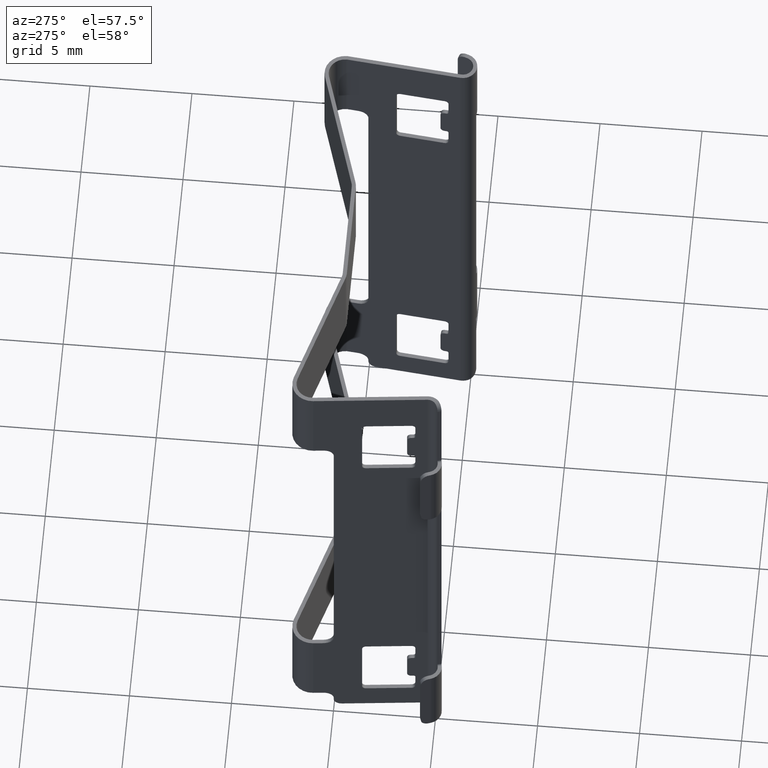
[diagram: clean part render]
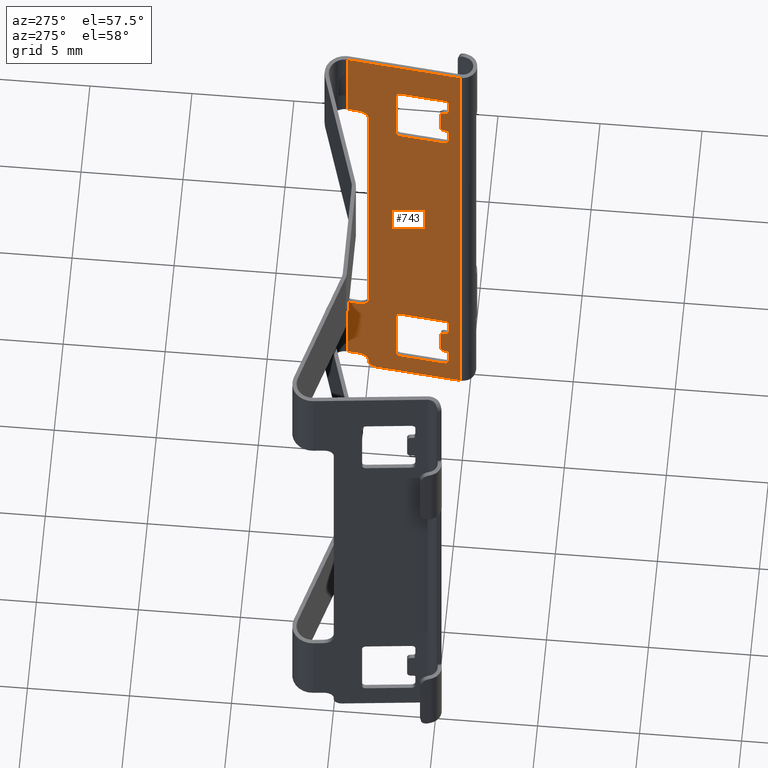
[diagram: same view with one face highlighted and labeled with its STEP entity id]
A machine part, auxiliary view. The second image highlights one B-rep face of the part: STEP entity #743.
In plain terms, the highlighted planar face has unit normal (-0.9948, 0.1017, 0).
Its self-contained STEP definition (entity closure, byte-faithful):
#2 = ORIENTED_EDGE ( 'NONE', *, *, #985, .T. ) ;
#4 = VERTEX_POINT ( 'NONE', #8831 ) ;
#15 = CARTESIAN_POINT ( 'NONE',  ( 9.820850543788150588, 1.018624868332397959, -27.50000000000000000 ) ) ;
#88 = CIRCLE ( 'NONE', #3876, 0.2000000000000002331 ) ;
#201 = DIRECTION ( 'NONE',  ( -0.9948131797247722341, 0.1017189139043866292, 0.0000000000000000000 ) ) ;
#209 = ORIENTED_EDGE ( 'NONE', *, *, #1680, .F. ) ;
#244 = CARTESIAN_POINT ( 'NONE',  ( 9.253630773689479838, -4.528796760894030271, -27.50000000000000000 ) ) ;
#251 = CARTESIAN_POINT ( 'NONE',  ( 9.768973897696909603, 0.5112701466727650468, -22.00000000000000000 ) ) ;
#261 = CARTESIAN_POINT ( 'NONE',  ( 9.333156098323097893, -3.751037364624969950, -3.649999999999999911 ) ) ;
#309 = ORIENTED_EDGE ( 'NONE', *, *, #9173, .T. ) ;
#341 = ORIENTED_EDGE ( 'NONE', *, *, #369, .F. ) ;
#361 = CARTESIAN_POINT ( 'NONE',  ( 9.333156098323097893, -3.751037364624969950, -22.55000000000000071 ) ) ;
#369 = EDGE_CURVE ( 'NONE', #6671, #1472, #4783, .T. ) ;
#395 = CARTESIAN_POINT ( 'NONE',  ( 9.312812315542219110, -3.950000000569925618, -5.150000000000000355 ) ) ;
#414 = DIRECTION ( 'NONE',  ( 0.9948131797247722341, -0.1017189139043866292, 0.0000000000000000000 ) ) ;
#441 = CIRCLE ( 'NONE', #1641, 0.2000000000000002331 ) ;
#459 = ORIENTED_EDGE ( 'NONE', *, *, #3282, .T. ) ;
#476 = DIRECTION ( 'NONE',  ( -0.1017189139043867124, -0.9948131797247723451, 0.0000000000000000000 ) ) ;
#555 = DIRECTION ( 'NONE',  ( 0.9948131797247722341, -0.1017189139043868235, 0.0000000000000000000 ) ) ;
#578 = CARTESIAN_POINT ( 'NONE',  ( 9.253630773689479838, -4.528796760894030271, -27.50000000000000000 ) ) ;
#597 = CIRCLE ( 'NONE', #987, 0.4999999999999998335 ) ;
#616 = LINE ( 'NONE', #6604, #3114 ) ;
#654 = LINE ( 'NONE', #8546, #4590 ) ;
#657 = DIRECTION ( 'NONE',  ( 0.9948131797247722341, -0.1017189139043868235, 0.0000000000000000000 ) ) ;
#722 = VERTEX_POINT ( 'NONE', #2347 ) ;
#724 = CARTESIAN_POINT ( 'NONE',  ( 9.253630773689479838, -4.528796760894030271, 0.0000000000000000000 ) ) ;
#743 = ADVANCED_FACE ( 'NONE', ( #4249, #1091, #7606 ), #9849, .T. ) ;
#765 = VECTOR ( 'NONE', #1357, 1000.000000000000114 ) ;
#766 = VECTOR ( 'NONE', #6572, 1000.000000000000114 ) ;
#876 = VECTOR ( 'NONE', #4039, 1000.000000000000114 ) ;
#882 = EDGE_CURVE ( 'NONE', #6743, #8726, #4061, .T. ) ;
#957 = DIRECTION ( 'NONE',  ( 0.0000000000000000000, 0.0000000000000000000, 1.000000000000000000 ) ) ;
#960 = CARTESIAN_POINT ( 'NONE',  ( 9.312812315542219110, -3.950000000569925618, -25.94999999999999929 ) ) ;
#962 = CIRCLE ( 'NONE', #10308, 0.4000000000000000222 ) ;
#985 = EDGE_CURVE ( 'NONE', #6490, #3969, #654, .T. ) ;
#987 = AXIS2_PLACEMENT_3D ( 'NONE', #8980, #3080, #3724 ) ;
#1003 = EDGE_LOOP ( 'NONE', ( #4217, #1516, #10907, #1556, #10713, #2727, #5761, #10853, #2973, #4162, #1889, #341, #4460, #1722 ) ) ;
#1024 = CARTESIAN_POINT ( 'NONE',  ( 9.353499881103978453, -3.552074728680014726, -23.44999999999999929 ) ) ;
#1038 = CARTESIAN_POINT ( 'NONE',  ( 9.718114440744720639, 0.01386355681037777961, -21.50000000000000000 ) ) ;
#1040 = CIRCLE ( 'NONE', #8229, 0.2000000000000000111 ) ;
#1091 = FACE_BOUND ( 'NONE', #8406, .T. ) ;
#1093 = CARTESIAN_POINT ( 'NONE',  ( 9.253630773689479838, -4.528796760894030271, 0.0000000000000000000 ) ) ;
#1100 = VECTOR ( 'NONE', #8612, 1000.000000000000000 ) ;
#1165 = VERTEX_POINT ( 'NONE', #6140 ) ;
#1167 = EDGE_CURVE ( 'NONE', #3404, #7690, #7004, .T. ) ;
#1222 = VECTOR ( 'NONE', #5324, 1000.000000000000000 ) ;
#1249 = VECTOR ( 'NONE', #3101, 1000.000000000000000 ) ;
#1321 = DIRECTION ( 'NONE',  ( 0.0000000000000000000, 0.0000000000000000000, 1.000000000000000000 ) ) ;
#1351 = CARTESIAN_POINT ( 'NONE',  ( 9.577281491693630855, -1.363485733285517920, -22.34999999999999787 ) ) ;
#1357 = DIRECTION ( 'NONE',  ( 0.1017189139043868096, 0.9948131797247721231, 0.0000000000000000000 ) ) ;
#1379 = ORIENTED_EDGE ( 'NONE', *, *, #5777, .F. ) ;
#1387 = EDGE_CURVE ( 'NONE', #6454, #6076, #88, .T. ) ;
#1402 = LINE ( 'NONE', #8231, #1662 ) ;
#1464 = CARTESIAN_POINT ( 'NONE',  ( 9.556937708912750296, -1.562448369230469813, -5.950000000000000178 ) ) ;
#1472 = VERTEX_POINT ( 'NONE', #2871 ) ;
#1510 = CARTESIAN_POINT ( 'NONE',  ( 9.312812315542219110, -3.950000000569925618, -23.34999999999999787 ) ) ;
#1516 = ORIENTED_EDGE ( 'NONE', *, *, #9038, .T. ) ;
#1542 = ORIENTED_EDGE ( 'NONE', *, *, #2044, .F. ) ;
#1551 = CARTESIAN_POINT ( 'NONE',  ( 9.333156098323097893, -3.751037364624969950, -5.950000000000000178 ) ) ;
#1556 = ORIENTED_EDGE ( 'NONE', *, *, #2644, .T. ) ;
#1602 = DIRECTION ( 'NONE',  ( -0.1017189139043867124, -0.9948131797247723451, 0.0000000000000000000 ) ) ;
#1634 = VECTOR ( 'NONE', #9759, 1000.000000000000000 ) ;
#1637 = CIRCLE ( 'NONE', #3511, 0.09999999999999990841 ) ;
#1638 = ORIENTED_EDGE ( 'NONE', *, *, #11016, .T. ) ;
#1639 = CARTESIAN_POINT ( 'NONE',  ( 9.322984206932659390, -3.850518682597450226, -23.34999999999999787 ) ) ;
#1641 = AXIS2_PLACEMENT_3D ( 'NONE', #5579, #414, #3870 ) ;
#1654 = DIRECTION ( 'NONE',  ( -0.1017189139043868373, -0.9948131797247723451, 0.0000000000000000000 ) ) ;
#1662 = VECTOR ( 'NONE', #4813, 1000.000000000000000 ) ;
#1680 = EDGE_CURVE ( 'NONE', #10053, #7690, #616, .T. ) ;
#1714 = AXIS2_PLACEMENT_3D ( 'NONE', #1464, #555, #3892 ) ;
#1722 = ORIENTED_EDGE ( 'NONE', *, *, #8065, .T. ) ;
#1783 = LINE ( 'NONE', #7409, #1249 ) ;
#1800 = EDGE_CURVE ( 'NONE', #3969, #3757, #7512, .T. ) ;
#1857 = ORIENTED_EDGE ( 'NONE', *, *, #3120, .T. ) ;
#1889 = ORIENTED_EDGE ( 'NONE', *, *, #9003, .T. ) ;
#1890 = VECTOR ( 'NONE', #9460, 1000.000000000000114 ) ;
#1917 = LINE ( 'NONE', #2388, #9513 ) ;
#1932 = LINE ( 'NONE', #1999, #8189 ) ;
#1999 = CARTESIAN_POINT ( 'NONE',  ( 9.577281491693630855, -1.363485733285517920, -26.14999999999999858 ) ) ;
#2021 = CIRCLE ( 'NONE', #1714, 0.2000000000000000111 ) ;
#2044 = EDGE_CURVE ( 'NONE', #9791, #4668, #9899, .T. ) ;
#2073 = LINE ( 'NONE', #7323, #765 ) ;
#2086 = CARTESIAN_POINT ( 'NONE',  ( 9.718114440744720639, 0.01386355681037777961, -27.00000000000000000 ) ) ;
#2149 = EDGE_CURVE ( 'NONE', #9560, #4, #5326, .T. ) ;
#2161 = CIRCLE ( 'NONE', #5332, 0.09999999999999990841 ) ;
#2207 = CIRCLE ( 'NONE', #5415, 0.2000000000000002331 ) ;
#2262 = DIRECTION ( 'NONE',  ( 0.9948131797247722341, -0.1017189139043868235, 0.0000000000000000000 ) ) ;
#2281 = ORIENTED_EDGE ( 'NONE', *, *, #7277, .T. ) ;
#2295 = VERTEX_POINT ( 'NONE', #8739 ) ;
#2296 = LINE ( 'NONE', #8944, #1634 ) ;
#2297 = LINE ( 'NONE', #724, #8821 ) ;
#2315 = AXIS2_PLACEMENT_3D ( 'NONE', #5867, #7474, #4200 ) ;
#2318 = VERTEX_POINT ( 'NONE', #251 ) ;
#2345 = CARTESIAN_POINT ( 'NONE',  ( 9.768973897696909603, 0.5112701466727640476, -21.50000000000000000 ) ) ;
#2347 = CARTESIAN_POINT ( 'NONE',  ( 9.353499881103978453, -3.552074728680014726, -3.649999999999999911 ) ) ;
#2388 = CARTESIAN_POINT ( 'NONE',  ( 9.312812315542219110, -3.950000000569925618, -6.150000000000000355 ) ) ;
#2395 = VECTOR ( 'NONE', #4211, 1000.000000000000114 ) ;
#2411 = DIRECTION ( 'NONE',  ( 0.0000000000000000000, 0.0000000000000000000, 1.000000000000000000 ) ) ;
#2424 = DIRECTION ( 'NONE',  ( 0.0000000000000000000, 0.0000000000000000000, 1.000000000000000000 ) ) ;
#2515 = DIRECTION ( 'NONE',  ( 0.9948131797247722341, -0.1017189139043870316, -2.773339119917625934E-30 ) ) ;
#2532 = EDGE_CURVE ( 'NONE', #1165, #8526, #2575, .T. ) ;
#2533 = ORIENTED_EDGE ( 'NONE', *, *, #1167, .T. ) ;
#2572 = CARTESIAN_POINT ( 'NONE',  ( 9.820850543788150588, 1.018624868332397959, -27.50000000000000000 ) ) ;
#2575 = LINE ( 'NONE', #3742, #7483 ) ;
#2644 = EDGE_CURVE ( 'NONE', #4462, #10331, #2296, .T. ) ;
#2726 = VERTEX_POINT ( 'NONE', #395 ) ;
#2727 = ORIENTED_EDGE ( 'NONE', *, *, #2149, .F. ) ;
#2742 = EDGE_CURVE ( 'NONE', #4004, #8726, #5872, .T. ) ;
#2760 = AXIS2_PLACEMENT_3D ( 'NONE', #3967, #2262, #9126 ) ;
#2787 = CARTESIAN_POINT ( 'NONE',  ( 9.333156098323097893, -3.751037364624969950, -3.449999999999999734 ) ) ;
#2796 = EDGE_CURVE ( 'NONE', #7701, #6340, #2021, .T. ) ;
#2821 = DIRECTION ( 'NONE',  ( 0.9948131797247722341, -0.1017189139043870316, 4.314083075427416018E-30 ) ) ;
#2864 = VECTOR ( 'NONE', #957, 1000.000000000000000 ) ;
#2871 = CARTESIAN_POINT ( 'NONE',  ( 9.820850543788150588, 1.018624868332397959, -22.00000000000000000 ) ) ;
#2908 = DIRECTION ( 'NONE',  ( 0.9948131797247722341, -0.1017189139043870316, 0.0000000000000000000 ) ) ;
#2939 = VECTOR ( 'NONE', #7705, 1000.000000000000000 ) ;
#2973 = ORIENTED_EDGE ( 'NONE', *, *, #6044, .F. ) ;
#2992 = CIRCLE ( 'NONE', #9852, 0.2000000000000002331 ) ;
#3022 = CARTESIAN_POINT ( 'NONE',  ( 9.322984206932659390, -3.850518682597450226, -25.05000000000000071 ) ) ;
#3027 = VERTEX_POINT ( 'NONE', #5935 ) ;
#3080 = DIRECTION ( 'NONE',  ( 0.9948131797247722341, -0.1017189139043868235, -3.451266460341925773E-31 ) ) ;
#3101 = DIRECTION ( 'NONE',  ( 0.0000000000000000000, 0.0000000000000000000, 1.000000000000000000 ) ) ;
#3104 = VECTOR ( 'NONE', #2411, 1000.000000000000000 ) ;
#3113 = CARTESIAN_POINT ( 'NONE',  ( 9.577281491693630855, -1.363485733285517920, -5.950000000000000178 ) ) ;
#3114 = VECTOR ( 'NONE', #10246, 1000.000000000000000 ) ;
#3120 = EDGE_CURVE ( 'NONE', #10315, #3404, #5302, .T. ) ;
#3124 = CARTESIAN_POINT ( 'NONE',  ( 9.333156098323097893, -3.751037364624969950, -26.14999999999999858 ) ) ;
#3140 = LINE ( 'NONE', #4599, #7128 ) ;
#3200 = CARTESIAN_POINT ( 'NONE',  ( 9.312812315542219110, -3.950000000569925618, -5.950000000000000178 ) ) ;
#3211 = VERTEX_POINT ( 'NONE', #2787 ) ;
#3231 = CARTESIAN_POINT ( 'NONE',  ( 9.333156098323097893, -3.751037364624969950, -4.850000000000000533 ) ) ;
#3282 = EDGE_CURVE ( 'NONE', #9791, #8156, #441, .T. ) ;
#3290 = ORIENTED_EDGE ( 'NONE', *, *, #4680, .T. ) ;
#3333 = LINE ( 'NONE', #7743, #1100 ) ;
#3354 = CARTESIAN_POINT ( 'NONE',  ( 9.768973897696909603, 0.5112701466727650468, -4.500000000000000000 ) ) ;
#3404 = VERTEX_POINT ( 'NONE', #4024 ) ;
#3411 = VERTEX_POINT ( 'NONE', #4796 ) ;
#3432 = CARTESIAN_POINT ( 'NONE',  ( 9.556937708912750296, -1.562448369230469813, -6.150000000000000355 ) ) ;
#3456 = EDGE_CURVE ( 'NONE', #9031, #2318, #3840, .T. ) ;
#3511 = AXIS2_PLACEMENT_3D ( 'NONE', #1639, #7632, #9296 ) ;
#3575 = EDGE_LOOP ( 'NONE', ( #8169, #4607, #1857, #2533, #209, #7076, #7143, #10621, #1542, #459, #10739, #2281, #6446, #7012, #1638, #8595 ) ) ;
#3612 = CARTESIAN_POINT ( 'NONE',  ( 9.768973897696909603, 0.5112701466727640476, -27.00000000000000000 ) ) ;
#3635 = VERTEX_POINT ( 'NONE', #3354 ) ;
#3664 = DIRECTION ( 'NONE',  ( -0.9948131797247722341, 0.1017189139043866292, 0.0000000000000000000 ) ) ;
#3724 = DIRECTION ( 'NONE',  ( -0.1017189139043868651, -0.9948131797247722341, -1.734723475976807686E-15 ) ) ;
#3742 = CARTESIAN_POINT ( 'NONE',  ( 9.577281491693630855, -1.363485733285517920, -26.14999999999999858 ) ) ;
#3757 = VERTEX_POINT ( 'NONE', #8807 ) ;
#3758 = AXIS2_PLACEMENT_3D ( 'NONE', #261, #201, #7842 ) ;
#3840 = CIRCLE ( 'NONE', #8269, 0.4999999999999998335 ) ;
#3847 = LINE ( 'NONE', #244, #1222 ) ;
#3870 = DIRECTION ( 'NONE',  ( -0.1017189139043867124, -0.9948131797247723451, 0.0000000000000000000 ) ) ;
#3876 = AXIS2_PLACEMENT_3D ( 'NONE', #3231, #4149, #1602 ) ;
#3892 = DIRECTION ( 'NONE',  ( -0.1017189139043868373, -0.9948131797247723451, 0.0000000000000000000 ) ) ;
#3916 = DIRECTION ( 'NONE',  ( 0.0000000000000000000, 0.0000000000000000000, 1.000000000000000000 ) ) ;
#3967 = CARTESIAN_POINT ( 'NONE',  ( 9.556937708912750296, -1.562448369230469813, -2.550000000000000266 ) ) ;
#3969 = VERTEX_POINT ( 'NONE', #10803 ) ;
#4004 = VERTEX_POINT ( 'NONE', #9997 ) ;
#4009 = DIRECTION ( 'NONE',  ( -0.1017189139043869345, -0.9948131797247721231, -8.673617379884043361E-15 ) ) ;
#4024 = CARTESIAN_POINT ( 'NONE',  ( 9.333156098323097893, -3.751037364624969950, -23.44999999999999929 ) ) ;
#4030 = VERTEX_POINT ( 'NONE', #10883 ) ;
#4039 = DIRECTION ( 'NONE',  ( -0.1017189139043870316, -0.9948131797247721231, 0.0000000000000000000 ) ) ;
#4061 = LINE ( 'NONE', #9324, #5111 ) ;
#4149 = DIRECTION ( 'NONE',  ( -0.9948131797247722341, 0.1017189139043870316, 0.0000000000000000000 ) ) ;
#4162 = ORIENTED_EDGE ( 'NONE', *, *, #3456, .T. ) ;
#4200 = DIRECTION ( 'NONE',  ( -0.1017189139043869345, -0.9948131797247721231, 0.0000000000000000000 ) ) ;
#4203 = EDGE_CURVE ( 'NONE', #8639, #4462, #3847, .T. ) ;
#4211 = DIRECTION ( 'NONE',  ( 0.1017189139043868096, 0.9948131797247721231, 0.0000000000000000000 ) ) ;
#4217 = ORIENTED_EDGE ( 'NONE', *, *, #6611, .F. ) ;
#4249 = FACE_OUTER_BOUND ( 'NONE', #1003, .T. ) ;
#4304 = CARTESIAN_POINT ( 'NONE',  ( 9.333156098323097893, -3.751037364624969950, -6.150000000000000355 ) ) ;
#4309 = EDGE_CURVE ( 'NONE', #6454, #722, #3140, .T. ) ;
#4342 = EDGE_CURVE ( 'NONE', #10053, #9982, #2992, .T. ) ;
#4393 = EDGE_CURVE ( 'NONE', #7221, #3211, #2073, .T. ) ;
#4395 = EDGE_CURVE ( 'NONE', #8526, #10204, #9533, .T. ) ;
#4415 = EDGE_CURVE ( 'NONE', #8627, #6671, #8600, .T. ) ;
#4460 = ORIENTED_EDGE ( 'NONE', *, *, #4415, .F. ) ;
#4462 = VERTEX_POINT ( 'NONE', #7403 ) ;
#4474 = DIRECTION ( 'NONE',  ( -0.1017189139043868651, -0.9948131797247722341, 0.0000000000000000000 ) ) ;
#4483 = DIRECTION ( 'NONE',  ( 0.1017189139043866292, 0.9948131797247722341, 0.0000000000000000000 ) ) ;
#4510 = DIRECTION ( 'NONE',  ( 0.9948131797247722341, -0.1017189139043868235, 0.0000000000000000000 ) ) ;
#4561 = CARTESIAN_POINT ( 'NONE',  ( 9.253630773689479838, -4.528796760894030271, -4.500000000000000000 ) ) ;
#4579 = VERTEX_POINT ( 'NONE', #3200 ) ;
#4590 = VECTOR ( 'NONE', #8586, 1000.000000000000114 ) ;
#4599 = CARTESIAN_POINT ( 'NONE',  ( 9.353499881103978453, -3.552074728680014726, -5.049999999999999822 ) ) ;
#4607 = ORIENTED_EDGE ( 'NONE', *, *, #7665, .T. ) ;
#4639 = CARTESIAN_POINT ( 'NONE',  ( 9.556937708912750296, -1.562448369230469813, -26.14999999999999858 ) ) ;
#4668 = VERTEX_POINT ( 'NONE', #6915 ) ;
#4680 = EDGE_CURVE ( 'NONE', #3211, #722, #10059, .T. ) ;
#4682 = ORIENTED_EDGE ( 'NONE', *, *, #6711, .T. ) ;
#4708 = DIRECTION ( 'NONE',  ( 0.9948131797247722341, -0.1017189139043868235, 0.0000000000000000000 ) ) ;
#4731 = DIRECTION ( 'NONE',  ( -0.9948131797247722341, 0.1017189139043866153, 0.0000000000000000000 ) ) ;
#4740 = CARTESIAN_POINT ( 'NONE',  ( 9.253630773689479838, -4.528796760894030271, -26.50000000000000000 ) ) ;
#4766 = EDGE_CURVE ( 'NONE', #8170, #8156, #1932, .T. ) ;
#4783 = LINE ( 'NONE', #2572, #2939 ) ;
#4796 = CARTESIAN_POINT ( 'NONE',  ( 9.718114440744720639, 0.01386355681037777961, -5.000000000000000000 ) ) ;
#4802 = AXIS2_PLACEMENT_3D ( 'NONE', #7862, #3664, #6294 ) ;
#4813 = DIRECTION ( 'NONE',  ( 0.0000000000000000000, 0.0000000000000000000, 1.000000000000000000 ) ) ;
#4815 = DIRECTION ( 'NONE',  ( -0.1017189139043868373, -0.9948131797247723451, 0.0000000000000000000 ) ) ;
#4844 = VECTOR ( 'NONE', #5708, 1000.000000000000000 ) ;
#4895 = CARTESIAN_POINT ( 'NONE',  ( 9.577281491693630855, -1.363485733285517920, -6.150000000000000355 ) ) ;
#4904 = CARTESIAN_POINT ( 'NONE',  ( 9.312812315542219110, -3.950000000569925618, -22.55000000000000071 ) ) ;
#4966 = CARTESIAN_POINT ( 'NONE',  ( 9.556937708912750296, -1.562448369230469813, -22.34999999999999787 ) ) ;
#5091 = LINE ( 'NONE', #6962, #2864 ) ;
#5111 = VECTOR ( 'NONE', #5811, 1000.000000000000000 ) ;
#5121 = CARTESIAN_POINT ( 'NONE',  ( 9.556937708912750296, -1.562448369230469813, -2.350000000000000089 ) ) ;
#5217 = CARTESIAN_POINT ( 'NONE',  ( 9.322984206932659390, -3.850518682597450226, -23.44999999999999929 ) ) ;
#5298 = EDGE_CURVE ( 'NONE', #3635, #9560, #10568, .T. ) ;
#5302 = LINE ( 'NONE', #1024, #1890 ) ;
#5324 = DIRECTION ( 'NONE',  ( -0.1017189139043866292, -0.9948131797247722341, 0.0000000000000000000 ) ) ;
#5326 = LINE ( 'NONE', #15, #3104 ) ;
#5329 = EDGE_CURVE ( 'NONE', #6735, #2726, #10063, .T. ) ;
#5330 = ORIENTED_EDGE ( 'NONE', *, *, #4309, .F. ) ;
#5332 = AXIS2_PLACEMENT_3D ( 'NONE', #10130, #2515, #4009 ) ;
#5363 = AXIS2_PLACEMENT_3D ( 'NONE', #578, #4731, #3916 ) ;
#5412 = EDGE_CURVE ( 'NONE', #6657, #9982, #6322, .T. ) ;
#5415 = AXIS2_PLACEMENT_3D ( 'NONE', #1551, #8356, #5797 ) ;
#5448 = DIRECTION ( 'NONE',  ( -0.9948131797247722341, 0.1017189139043868235, 0.0000000000000000000 ) ) ;
#5524 = CARTESIAN_POINT ( 'NONE',  ( 9.333156098323097893, -3.751037364624969950, -24.85000000000000142 ) ) ;
#5579 = CARTESIAN_POINT ( 'NONE',  ( 9.333156098323097893, -3.751037364624969950, -25.94999999999999929 ) ) ;
#5708 = DIRECTION ( 'NONE',  ( 0.1017189139043866292, 0.9948131797247722341, 0.0000000000000000000 ) ) ;
#5732 = DIRECTION ( 'NONE',  ( -0.1017189139043866292, -0.9948131797247722341, 0.0000000000000000000 ) ) ;
#5749 = ORIENTED_EDGE ( 'NONE', *, *, #2796, .T. ) ;
#5756 = VECTOR ( 'NONE', #4483, 1000.000000000000000 ) ;
#5761 = ORIENTED_EDGE ( 'NONE', *, *, #5298, .F. ) ;
#5777 = EDGE_CURVE ( 'NONE', #4579, #2726, #5091, .T. ) ;
#5797 = DIRECTION ( 'NONE',  ( -0.1017189139043867124, -0.9948131797247723451, 0.0000000000000000000 ) ) ;
#5811 = DIRECTION ( 'NONE',  ( 0.0000000000000000000, 0.0000000000000000000, 1.000000000000000000 ) ) ;
#5821 = CARTESIAN_POINT ( 'NONE',  ( 9.333156098323097893, -3.751037364624969950, -5.049999999999999822 ) ) ;
#5842 = CARTESIAN_POINT ( 'NONE',  ( 9.353499881103978453, -3.552074728680014726, -5.049999999999999822 ) ) ;
#5867 = CARTESIAN_POINT ( 'NONE',  ( 9.322984206932659390, -3.850518682597444897, -25.14999999999999858 ) ) ;
#5872 = CIRCLE ( 'NONE', #7398, 0.2000000000000002331 ) ;
#5935 = CARTESIAN_POINT ( 'NONE',  ( 9.718114440744720639, 0.01386355681037777961, -27.09999999999999787 ) ) ;
#6044 = EDGE_CURVE ( 'NONE', #9031, #3411, #1402, .T. ) ;
#6076 = VERTEX_POINT ( 'NONE', #5821 ) ;
#6100 = ORIENTED_EDGE ( 'NONE', *, *, #7500, .T. ) ;
#6121 = EDGE_CURVE ( 'NONE', #7701, #10918, #9124, .T. ) ;
#6140 = CARTESIAN_POINT ( 'NONE',  ( 9.577281491693630855, -1.363485733285517920, -25.94999999999999929 ) ) ;
#6198 = CARTESIAN_POINT ( 'NONE',  ( 9.333156098323097893, -3.751037364624969950, -2.550000000000000266 ) ) ;
#6231 = DIRECTION ( 'NONE',  ( -0.1017189139043870316, -0.9948131797247721231, 0.0000000000000000000 ) ) ;
#6294 = DIRECTION ( 'NONE',  ( -0.1017189139043867124, -0.9948131797247723451, 0.0000000000000000000 ) ) ;
#6322 = LINE ( 'NONE', #8251, #766 ) ;
#6340 = VERTEX_POINT ( 'NONE', #3113 ) ;
#6367 = ORIENTED_EDGE ( 'NONE', *, *, #1387, .T. ) ;
#6374 = LINE ( 'NONE', #5842, #2395 ) ;
#6375 = ORIENTED_EDGE ( 'NONE', *, *, #1800, .T. ) ;
#6446 = ORIENTED_EDGE ( 'NONE', *, *, #2532, .T. ) ;
#6454 = VERTEX_POINT ( 'NONE', #9478 ) ;
#6490 = VERTEX_POINT ( 'NONE', #5121 ) ;
#6539 = EDGE_CURVE ( 'NONE', #4030, #3757, #1917, .T. ) ;
#6572 = DIRECTION ( 'NONE',  ( 0.1017189139043868096, 0.9948131797247721231, 0.0000000000000000000 ) ) ;
#6601 = DIRECTION ( 'NONE',  ( 0.0000000000000000000, 0.0000000000000000000, 1.000000000000000000 ) ) ;
#6604 = CARTESIAN_POINT ( 'NONE',  ( 9.353499881103978453, -3.552074728680014726, -25.05000000000000071 ) ) ;
#6611 = EDGE_CURVE ( 'NONE', #3027, #7348, #1783, .T. ) ;
#6622 = CARTESIAN_POINT ( 'NONE',  ( 9.577281491693630855, -1.363485733285517920, -6.150000000000000355 ) ) ;
#6657 = VERTEX_POINT ( 'NONE', #3022 ) ;
#6671 = VERTEX_POINT ( 'NONE', #8120 ) ;
#6688 = CARTESIAN_POINT ( 'NONE',  ( 9.677426875182970178, -0.3840617150795319623, -27.50000000000000000 ) ) ;
#6704 = EDGE_CURVE ( 'NONE', #4030, #7221, #2161, .T. ) ;
#6711 = EDGE_CURVE ( 'NONE', #6340, #2295, #9887, .T. ) ;
#6735 = VERTEX_POINT ( 'NONE', #7568 ) ;
#6743 = VERTEX_POINT ( 'NONE', #1510 ) ;
#6902 = AXIS2_PLACEMENT_3D ( 'NONE', #6198, #2821, #8779 ) ;
#6915 = CARTESIAN_POINT ( 'NONE',  ( 9.312812315542219110, -3.950000000569925618, -25.14999999999999858 ) ) ;
#6962 = CARTESIAN_POINT ( 'NONE',  ( 9.312812315542219110, -3.950000000569925618, -6.150000000000000355 ) ) ;
#7004 = CIRCLE ( 'NONE', #4802, 0.2000000000000002331 ) ;
#7012 = ORIENTED_EDGE ( 'NONE', *, *, #4395, .T. ) ;
#7056 = LINE ( 'NONE', #1351, #8267 ) ;
#7061 = DIRECTION ( 'NONE',  ( 0.9948131797247722341, -0.1017189139043864210, 0.0000000000000000000 ) ) ;
#7076 = ORIENTED_EDGE ( 'NONE', *, *, #4342, .T. ) ;
#7100 = CARTESIAN_POINT ( 'NONE',  ( 9.677426875182970178, -0.3840617150795310186, -27.09999999999999787 ) ) ;
#7128 = VECTOR ( 'NONE', #1321, 1000.000000000000000 ) ;
#7137 = ORIENTED_EDGE ( 'NONE', *, *, #6539, .F. ) ;
#7143 = ORIENTED_EDGE ( 'NONE', *, *, #5412, .F. ) ;
#7221 = VERTEX_POINT ( 'NONE', #8898 ) ;
#7277 = EDGE_CURVE ( 'NONE', #8170, #1165, #1040, .T. ) ;
#7279 = EDGE_CURVE ( 'NONE', #6657, #4668, #10071, .T. ) ;
#7320 = CIRCLE ( 'NONE', #2760, 0.2000000000000000111 ) ;
#7323 = CARTESIAN_POINT ( 'NONE',  ( 9.353499881103978453, -3.552074728680014726, -3.449999999999999734 ) ) ;
#7348 = VERTEX_POINT ( 'NONE', #2086 ) ;
#7398 = AXIS2_PLACEMENT_3D ( 'NONE', #361, #2908, #8877 ) ;
#7403 = CARTESIAN_POINT ( 'NONE',  ( 9.253630773689479838, -4.528796760894030271, -27.50000000000000000 ) ) ;
#7409 = CARTESIAN_POINT ( 'NONE',  ( 9.718114440744720639, 0.01386355681037777961, -44.00000000000000000 ) ) ;
#7474 = DIRECTION ( 'NONE',  ( 0.9948131797247722341, -0.1017189139043864210, 0.0000000000000000000 ) ) ;
#7483 = VECTOR ( 'NONE', #8121, 1000.000000000000000 ) ;
#7500 = EDGE_CURVE ( 'NONE', #4579, #10918, #2207, .T. ) ;
#7512 = CIRCLE ( 'NONE', #6902, 0.2000000000000002331 ) ;
#7568 = CARTESIAN_POINT ( 'NONE',  ( 9.322984206932659390, -3.850518682597450226, -5.049999999999999822 ) ) ;
#7606 = FACE_BOUND ( 'NONE', #3575, .T. ) ;
#7632 = DIRECTION ( 'NONE',  ( 0.9948131797247722341, -0.1017189139043870316, 0.0000000000000000000 ) ) ;
#7665 = EDGE_CURVE ( 'NONE', #6743, #10315, #1637, .T. ) ;
#7690 = VERTEX_POINT ( 'NONE', #7768 ) ;
#7701 = VERTEX_POINT ( 'NONE', #3432 ) ;
#7705 = DIRECTION ( 'NONE',  ( 0.0000000000000000000, 0.0000000000000000000, 1.000000000000000000 ) ) ;
#7743 = CARTESIAN_POINT ( 'NONE',  ( 9.253630773689479838, -4.528796760894030271, -22.00000000000000000 ) ) ;
#7768 = CARTESIAN_POINT ( 'NONE',  ( 9.353499881103978453, -3.552074728680014726, -23.65000000000000213 ) ) ;
#7842 = DIRECTION ( 'NONE',  ( -0.1017189139043867124, -0.9948131797247723451, 0.0000000000000000000 ) ) ;
#7854 = AXIS2_PLACEMENT_3D ( 'NONE', #7886, #7061, #9546 ) ;
#7862 = CARTESIAN_POINT ( 'NONE',  ( 9.333156098323097893, -3.751037364624969950, -23.65000000000000213 ) ) ;
#7886 = CARTESIAN_POINT ( 'NONE',  ( 9.322984206932659390, -3.850518682597444897, -5.150000000000000355 ) ) ;
#7929 = ORIENTED_EDGE ( 'NONE', *, *, #4393, .T. ) ;
#7942 = CARTESIAN_POINT ( 'NONE',  ( 9.333156098323097893, -3.751037364624969950, -25.05000000000000071 ) ) ;
#8065 = EDGE_CURVE ( 'NONE', #8627, #7348, #8967, .T. ) ;
#8120 = CARTESIAN_POINT ( 'NONE',  ( 9.820850543788150588, 1.018624868332397959, -26.50000000000000000 ) ) ;
#8121 = DIRECTION ( 'NONE',  ( 0.0000000000000000000, 0.0000000000000000000, 1.000000000000000000 ) ) ;
#8156 = VERTEX_POINT ( 'NONE', #3124 ) ;
#8169 = ORIENTED_EDGE ( 'NONE', *, *, #882, .F. ) ;
#8170 = VERTEX_POINT ( 'NONE', #4639 ) ;
#8189 = VECTOR ( 'NONE', #6231, 1000.000000000000114 ) ;
#8222 = CARTESIAN_POINT ( 'NONE',  ( 9.312812315542219110, -3.950000000569925618, -26.14999999999999858 ) ) ;
#8229 = AXIS2_PLACEMENT_3D ( 'NONE', #9875, #4708, #1654 ) ;
#8231 = CARTESIAN_POINT ( 'NONE',  ( 9.718114440744720639, 0.01386355681037777961, -22.00000000000000000 ) ) ;
#8251 = CARTESIAN_POINT ( 'NONE',  ( 9.353499881103978453, -3.552074728680014726, -25.05000000000000071 ) ) ;
#8267 = VECTOR ( 'NONE', #8942, 1000.000000000000114 ) ;
#8269 = AXIS2_PLACEMENT_3D ( 'NONE', #2345, #657, #8286 ) ;
#8286 = DIRECTION ( 'NONE',  ( -0.1017189139043868651, -0.9948131797247722341, 0.0000000000000000000 ) ) ;
#8347 = EDGE_CURVE ( 'NONE', #3635, #3411, #597, .T. ) ;
#8356 = DIRECTION ( 'NONE',  ( 0.9948131797247722341, -0.1017189139043866292, 0.0000000000000000000 ) ) ;
#8406 = EDGE_LOOP ( 'NONE', ( #7137, #9068, #7929, #3290, #5330, #6367, #9756, #8462, #1379, #6100, #10867, #5749, #4682, #309, #2, #6375 ) ) ;
#8462 = ORIENTED_EDGE ( 'NONE', *, *, #5329, .T. ) ;
#8526 = VERTEX_POINT ( 'NONE', #8757 ) ;
#8546 = CARTESIAN_POINT ( 'NONE',  ( 9.577281491693630855, -1.363485733285517920, -2.350000000000000089 ) ) ;
#8567 = VECTOR ( 'NONE', #6601, 1000.000000000000000 ) ;
#8586 = DIRECTION ( 'NONE',  ( -0.1017189139043870316, -0.9948131797247721231, 0.0000000000000000000 ) ) ;
#8595 = ORIENTED_EDGE ( 'NONE', *, *, #2742, .T. ) ;
#8600 = LINE ( 'NONE', #4740, #4844 ) ;
#8612 = DIRECTION ( 'NONE',  ( 0.1017189139043866292, 0.9948131797247722341, 0.0000000000000000000 ) ) ;
#8627 = VERTEX_POINT ( 'NONE', #11008 ) ;
#8639 = VERTEX_POINT ( 'NONE', #6688 ) ;
#8654 = EDGE_CURVE ( 'NONE', #4, #10331, #2297, .T. ) ;
#8726 = VERTEX_POINT ( 'NONE', #4904 ) ;
#8739 = CARTESIAN_POINT ( 'NONE',  ( 9.577281491693630855, -1.363485733285517920, -2.550000000000000266 ) ) ;
#8757 = CARTESIAN_POINT ( 'NONE',  ( 9.577281491693630855, -1.363485733285517920, -22.55000000000000071 ) ) ;
#8779 = DIRECTION ( 'NONE',  ( -0.1017189139043867124, -0.9948131797247723451, 1.301042606982603743E-14 ) ) ;
#8807 = CARTESIAN_POINT ( 'NONE',  ( 9.312812315542219110, -3.950000000569925618, -2.550000000000000266 ) ) ;
#8821 = VECTOR ( 'NONE', #5732, 1000.000000000000000 ) ;
#8831 = CARTESIAN_POINT ( 'NONE',  ( 9.820850543788150588, 1.018624868332397959, 0.0000000000000000000 ) ) ;
#8877 = DIRECTION ( 'NONE',  ( -0.1017189139043867124, -0.9948131797247723451, 0.0000000000000000000 ) ) ;
#8898 = CARTESIAN_POINT ( 'NONE',  ( 9.322984206932659390, -3.850518682597450226, -3.449999999999999734 ) ) ;
#8942 = DIRECTION ( 'NONE',  ( -0.1017189139043870316, -0.9948131797247721231, 0.0000000000000000000 ) ) ;
#8944 = CARTESIAN_POINT ( 'NONE',  ( 9.253630773689479838, -4.528796760894030271, -27.50000000000000000 ) ) ;
#8946 = DIRECTION ( 'NONE',  ( -0.9948131797247722341, 0.1017189139043870316, 0.0000000000000000000 ) ) ;
#8967 = CIRCLE ( 'NONE', #10792, 0.4999999999999998335 ) ;
#8980 = CARTESIAN_POINT ( 'NONE',  ( 9.768973897696909603, 0.5112701466727640476, -5.000000000000000000 ) ) ;
#8991 = CARTESIAN_POINT ( 'NONE',  ( 9.353499881103978453, -3.552074728680014726, -24.85000000000000142 ) ) ;
#9003 = EDGE_CURVE ( 'NONE', #2318, #1472, #3333, .T. ) ;
#9031 = VERTEX_POINT ( 'NONE', #1038 ) ;
#9038 = EDGE_CURVE ( 'NONE', #3027, #8639, #962, .T. ) ;
#9068 = ORIENTED_EDGE ( 'NONE', *, *, #6704, .T. ) ;
#9124 = LINE ( 'NONE', #6622, #876 ) ;
#9126 = DIRECTION ( 'NONE',  ( -0.1017189139043868373, -0.9948131797247723451, 0.0000000000000000000 ) ) ;
#9173 = EDGE_CURVE ( 'NONE', #2295, #6490, #7320, .T. ) ;
#9194 = CARTESIAN_POINT ( 'NONE',  ( 9.820850543788150588, 1.018624868332397959, -4.500000000000000000 ) ) ;
#9296 = DIRECTION ( 'NONE',  ( -0.1017189139043869345, -0.9948131797247721231, 0.0000000000000000000 ) ) ;
#9324 = CARTESIAN_POINT ( 'NONE',  ( 9.312812315542219110, -3.950000000569925618, -26.14999999999999858 ) ) ;
#9460 = DIRECTION ( 'NONE',  ( 0.1017189139043868096, 0.9948131797247721231, 0.0000000000000000000 ) ) ;
#9478 = CARTESIAN_POINT ( 'NONE',  ( 9.353499881103978453, -3.552074728680014726, -4.850000000000000533 ) ) ;
#9513 = VECTOR ( 'NONE', #2424, 1000.000000000000000 ) ;
#9533 = CIRCLE ( 'NONE', #10420, 0.2000000000000000111 ) ;
#9546 = DIRECTION ( 'NONE',  ( -0.1017189139043869345, -0.9948131797247721231, 0.0000000000000000000 ) ) ;
#9560 = VERTEX_POINT ( 'NONE', #9194 ) ;
#9697 = EDGE_CURVE ( 'NONE', #6735, #6076, #6374, .T. ) ;
#9731 = DIRECTION ( 'NONE',  ( -0.1017189139043868373, -0.9948131797247722341, 0.0000000000000000000 ) ) ;
#9756 = ORIENTED_EDGE ( 'NONE', *, *, #9697, .F. ) ;
#9759 = DIRECTION ( 'NONE',  ( 0.0000000000000000000, 0.0000000000000000000, 1.000000000000000000 ) ) ;
#9791 = VERTEX_POINT ( 'NONE', #960 ) ;
#9849 = PLANE ( 'NONE',  #5363 ) ;
#9852 = AXIS2_PLACEMENT_3D ( 'NONE', #5524, #8946, #476 ) ;
#9875 = CARTESIAN_POINT ( 'NONE',  ( 9.556937708912750296, -1.562448369230469813, -25.94999999999999929 ) ) ;
#9887 = LINE ( 'NONE', #4895, #8567 ) ;
#9899 = LINE ( 'NONE', #8222, #10162 ) ;
#9950 = DIRECTION ( 'NONE',  ( 0.9948131797247722341, -0.1017189139043868235, 0.0000000000000000000 ) ) ;
#9982 = VERTEX_POINT ( 'NONE', #7942 ) ;
#9985 = CARTESIAN_POINT ( 'NONE',  ( 9.556937708912750296, -1.562448369230469813, -22.55000000000000071 ) ) ;
#9997 = CARTESIAN_POINT ( 'NONE',  ( 9.333156098323097893, -3.751037364624969950, -22.34999999999999787 ) ) ;
#10053 = VERTEX_POINT ( 'NONE', #8991 ) ;
#10059 = CIRCLE ( 'NONE', #3758, 0.2000000000000002331 ) ;
#10063 = CIRCLE ( 'NONE', #7854, 0.09999999999999990841 ) ;
#10071 = CIRCLE ( 'NONE', #2315, 0.09999999999999990841 ) ;
#10130 = CARTESIAN_POINT ( 'NONE',  ( 9.322984206932659390, -3.850518682597450226, -3.350000000000000089 ) ) ;
#10162 = VECTOR ( 'NONE', #10772, 1000.000000000000000 ) ;
#10204 = VERTEX_POINT ( 'NONE', #4966 ) ;
#10246 = DIRECTION ( 'NONE',  ( 0.0000000000000000000, 0.0000000000000000000, 1.000000000000000000 ) ) ;
#10308 = AXIS2_PLACEMENT_3D ( 'NONE', #7100, #5448, #9731 ) ;
#10315 = VERTEX_POINT ( 'NONE', #5217 ) ;
#10331 = VERTEX_POINT ( 'NONE', #1093 ) ;
#10420 = AXIS2_PLACEMENT_3D ( 'NONE', #9985, #9950, #4815 ) ;
#10568 = LINE ( 'NONE', #4561, #5756 ) ;
#10621 = ORIENTED_EDGE ( 'NONE', *, *, #7279, .T. ) ;
#10713 = ORIENTED_EDGE ( 'NONE', *, *, #8654, .F. ) ;
#10739 = ORIENTED_EDGE ( 'NONE', *, *, #4766, .F. ) ;
#10772 = DIRECTION ( 'NONE',  ( 0.0000000000000000000, 0.0000000000000000000, 1.000000000000000000 ) ) ;
#10792 = AXIS2_PLACEMENT_3D ( 'NONE', #3612, #4510, #4474 ) ;
#10803 = CARTESIAN_POINT ( 'NONE',  ( 9.333156098323097893, -3.751037364624969950, -2.350000000000000089 ) ) ;
#10853 = ORIENTED_EDGE ( 'NONE', *, *, #8347, .T. ) ;
#10867 = ORIENTED_EDGE ( 'NONE', *, *, #6121, .F. ) ;
#10883 = CARTESIAN_POINT ( 'NONE',  ( 9.312812315542219110, -3.950000000569925618, -3.350000000000000089 ) ) ;
#10907 = ORIENTED_EDGE ( 'NONE', *, *, #4203, .T. ) ;
#10918 = VERTEX_POINT ( 'NONE', #4304 ) ;
#11008 = CARTESIAN_POINT ( 'NONE',  ( 9.768973897696909603, 0.5112701466727650468, -26.50000000000000000 ) ) ;
#11016 = EDGE_CURVE ( 'NONE', #10204, #4004, #7056, .T. ) ;